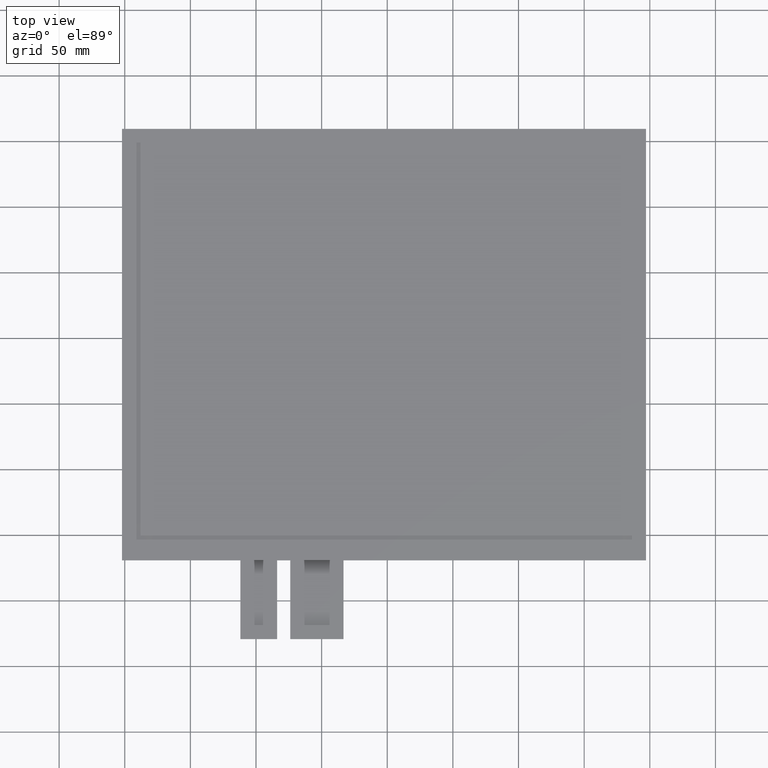
[diagram: clean part render]
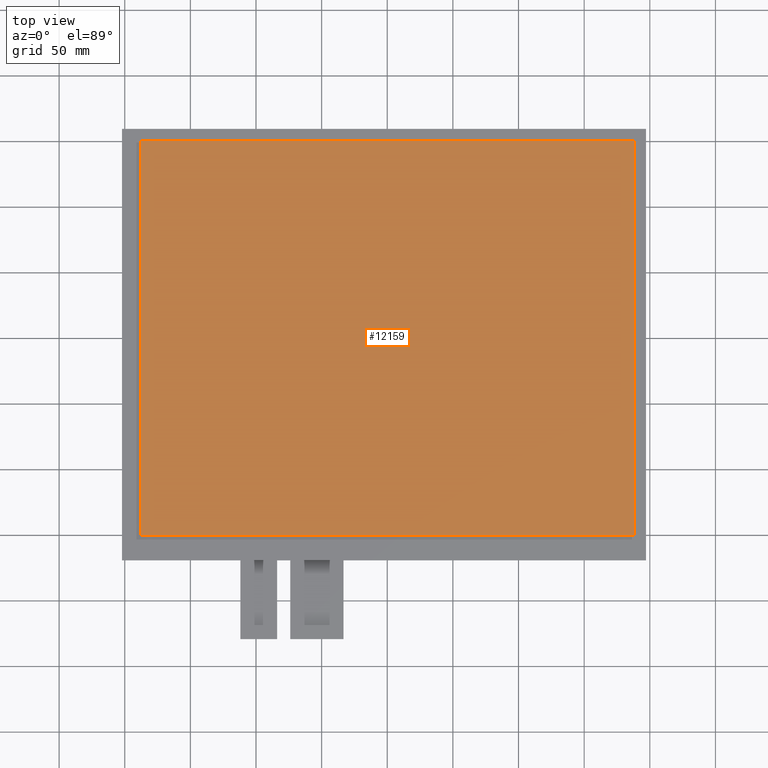
[diagram: same view with one face highlighted and labeled with its STEP entity id]
A machine part, top view. The second image highlights one B-rep face of the part: STEP entity #12159.
In plain terms, the highlighted planar face has unit normal (0, 0, 1).
Its self-contained STEP definition (entity closure, byte-faithful):
#701=PLANE('',#12765);
#1279=FACE_OUTER_BOUND('',#1861,.T.);
#1861=EDGE_LOOP('',(#11571,#11572,#11573,#11574));
#3535=LINE('',#19015,#5243);
#3539=LINE('',#19023,#5247);
#3542=LINE('',#19029,#5250);
#3545=LINE('',#19034,#5253);
#5243=VECTOR('',#15583,10.);
#5247=VECTOR('',#15589,10.);
#5250=VECTOR('',#15594,10.);
#5253=VECTOR('',#15599,10.);
#6407=VERTEX_POINT('',#19013);
#6408=VERTEX_POINT('',#19014);
#6411=VERTEX_POINT('',#19022);
#6413=VERTEX_POINT('',#19028);
#8111=EDGE_CURVE('',#6407,#6408,#3535,.T.);
#8115=EDGE_CURVE('',#6411,#6407,#3539,.T.);
#8118=EDGE_CURVE('',#6413,#6411,#3542,.T.);
#8121=EDGE_CURVE('',#6408,#6413,#3545,.T.);
#11571=ORIENTED_EDGE('',*,*,#8111,.T.);
#11572=ORIENTED_EDGE('',*,*,#8121,.T.);
#11573=ORIENTED_EDGE('',*,*,#8118,.T.);
#11574=ORIENTED_EDGE('',*,*,#8115,.T.);
#12159=ADVANCED_FACE('',(#1279),#701,.T.);
#12765=AXIS2_PLACEMENT_3D('',#19086,#15645,#15646);
#15583=DIRECTION('',(1.,0.,0.));
#15589=DIRECTION('',(0.,-1.,0.));
#15594=DIRECTION('',(-1.,0.,0.));
#15599=DIRECTION('',(0.,1.,0.));
#15645=DIRECTION('center_axis',(0.,0.,1.));
#15646=DIRECTION('ref_axis',(1.,0.,0.));
#19013=CARTESIAN_POINT('',(-188.2,-150.55,0.));
#19014=CARTESIAN_POINT('',(188.2,-150.55,0.));
#19015=CARTESIAN_POINT('',(-95.35,-150.55,0.));
#19022=CARTESIAN_POINT('',(-188.2,150.55,0.));
#19023=CARTESIAN_POINT('',(-188.2,72.85,0.));
#19028=CARTESIAN_POINT('',(188.2,150.55,0.));
#19029=CARTESIAN_POINT('',(92.85,150.55,0.));
#19034=CARTESIAN_POINT('',(188.2,-77.7,0.));
#19086=CARTESIAN_POINT('Origin',(-2.50000000000002,-4.84999999999999,0.));